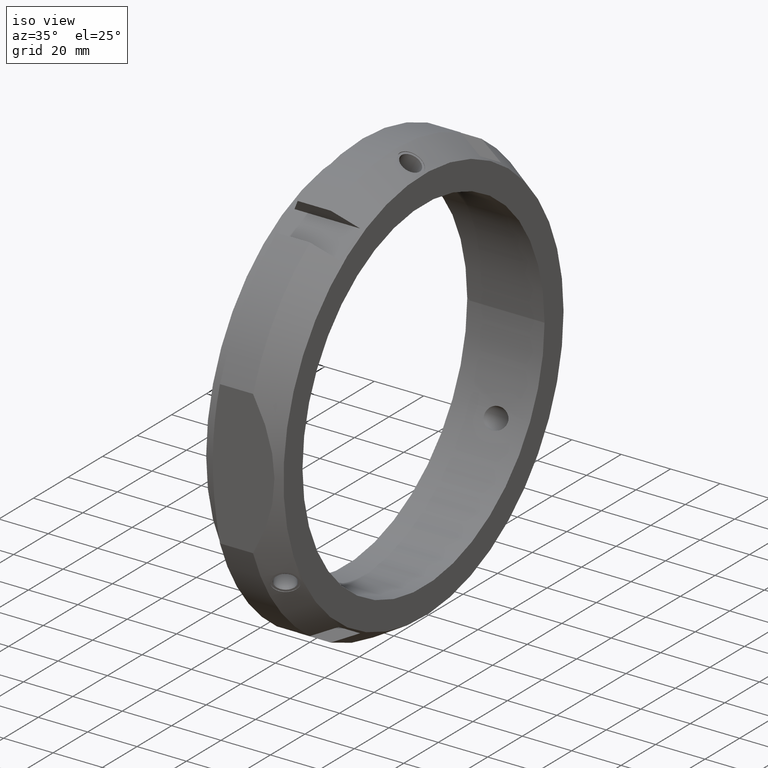
[diagram: clean part render]
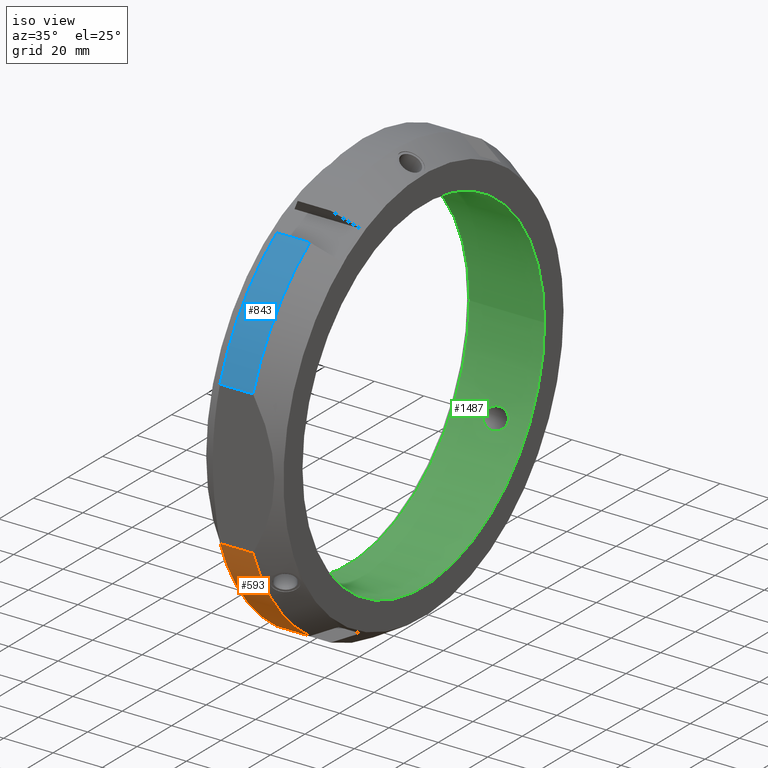
[diagram: same view with three faces highlighted in distinct colors, each labeled with its STEP entity id]
A machine part, iso view with three faces highlighted in distinct colors.
Their STEP definitions:

[orange] entity #593 — the highlighted cylindrical surface (partial cylindrical patch) has radius 87.5 mm, axis along (1, 0, 0).
#219=CARTESIAN_POINT('',(7.33012701892217,-49.671953106810982,-72.034346492175331));
#220=VERTEX_POINT('',#219);
#242=CARTESIAN_POINT('',(20.741669750802249,-49.671953106810989,-72.034346492175331));
#243=VERTEX_POINT('',#242);
#257=CARTESIAN_POINT('',(7.33012701892217,-49.671953106810989,-72.034346492175331));
#258=DIRECTION('',(1.0,0.0,0.0));
#259=VECTOR('',#258,13.411542731880079);
#260=LINE('',#257,#259);
#261=EDGE_CURVE('',#220,#243,#260,.T.);
#385=CARTESIAN_POINT('',(7.330127018922164,-82.500000000000014,-29.154759474226442));
#386=VERTEX_POINT('',#385);
#387=CARTESIAN_POINT('',(7.330127018922164,0.0,0.0));
#388=DIRECTION('',(1.0,0.0,0.0));
#389=DIRECTION('',(0.0,1.0,0.0));
#390=AXIS2_PLACEMENT_3D('',#387,#388,#389);
#391=CIRCLE('',#390,87.5);
#392=EDGE_CURVE('',#386,#220,#391,.T.);
#569=CARTESIAN_POINT('',(14.035898384862215,0.0,0.0));
#570=DIRECTION('',(1.0,0.0,0.0));
#571=DIRECTION('',(0.0,1.0,0.0));
#572=AXIS2_PLACEMENT_3D('',#569,#570,#571);
#573=CYLINDRICAL_SURFACE('',#572,87.5);
#574=ORIENTED_EDGE('',*,*,#261,.T.);
#575=CARTESIAN_POINT('',(20.741669750802263,-82.500000000000014,-29.154759474226442));
#576=VERTEX_POINT('',#575);
#577=CARTESIAN_POINT('',(20.741669750802263,0.0,0.0));
#578=DIRECTION('',(1.0,0.0,0.0));
#579=DIRECTION('',(0.0,1.0,0.0));
#580=AXIS2_PLACEMENT_3D('',#577,#578,#579);
#581=CIRCLE('',#580,87.5);
#582=EDGE_CURVE('',#576,#243,#581,.T.);
#583=ORIENTED_EDGE('',*,*,#582,.F.);
#584=CARTESIAN_POINT('',(20.741669750802263,-82.500000000000014,-29.154759474226442));
#585=DIRECTION('',(-1.0,0.0,0.0));
#586=VECTOR('',#585,13.4115427318801);
#587=LINE('',#584,#586);
#588=EDGE_CURVE('',#576,#386,#587,.T.);
#589=ORIENTED_EDGE('',*,*,#588,.T.);
#590=ORIENTED_EDGE('',*,*,#392,.T.);
#591=EDGE_LOOP('',(#574,#583,#589,#590));
#592=FACE_OUTER_BOUND('',#591,.T.);
#593=ADVANCED_FACE('',(#592),#573,.T.);

[blue] entity #843 — the highlighted cylindrical surface (partial cylindrical patch) has radius 87.5 mm, axis along (1, 0, 0).
#394=CARTESIAN_POINT('',(7.330127018922164,-82.500000000000057,29.15475947422637));
#395=VERTEX_POINT('',#394);
#409=CARTESIAN_POINT('',(7.330127018922164,-49.671953106810989,72.034346492175331));
#410=VERTEX_POINT('',#409);
#411=CARTESIAN_POINT('',(7.330127018922164,0.0,0.0));
#412=DIRECTION('',(1.0,0.0,0.0));
#413=DIRECTION('',(0.0,1.0,0.0));
#414=AXIS2_PLACEMENT_3D('',#411,#412,#413);
#415=CIRCLE('',#414,87.5);
#416=EDGE_CURVE('',#410,#395,#415,.T.);
#769=CARTESIAN_POINT('',(20.741669750802249,-49.671953106810989,72.034346492175331));
#770=VERTEX_POINT('',#769);
#771=CARTESIAN_POINT('',(20.741669750802249,-49.671953106810989,72.034346492175331));
#772=DIRECTION('',(-1.0,0.0,0.0));
#773=VECTOR('',#772,13.411542731880086);
#774=LINE('',#771,#773);
#775=EDGE_CURVE('',#770,#410,#774,.T.);
#819=CARTESIAN_POINT('',(14.035898384862215,0.0,0.0));
#820=DIRECTION('',(1.0,0.0,0.0));
#821=DIRECTION('',(0.0,1.0,0.0));
#822=AXIS2_PLACEMENT_3D('',#819,#820,#821);
#823=CYLINDRICAL_SURFACE('',#822,87.5);
#824=ORIENTED_EDGE('',*,*,#775,.T.);
#825=ORIENTED_EDGE('',*,*,#416,.T.);
#826=CARTESIAN_POINT('',(20.741669750802263,-82.500000000000057,29.15475947422637));
#827=VERTEX_POINT('',#826);
#828=CARTESIAN_POINT('',(7.330127018922163,-82.500000000000057,29.15475947422637));
#829=DIRECTION('',(1.0,0.0,0.0));
#830=VECTOR('',#829,13.4115427318801);
#831=LINE('',#828,#830);
#832=EDGE_CURVE('',#395,#827,#831,.T.);
#833=ORIENTED_EDGE('',*,*,#832,.T.);
#834=CARTESIAN_POINT('',(20.741669750802263,0.0,0.0));
#835=DIRECTION('',(1.0,0.0,0.0));
#836=DIRECTION('',(0.0,1.0,0.0));
#837=AXIS2_PLACEMENT_3D('',#834,#835,#836);
#838=CIRCLE('',#837,87.5);
#839=EDGE_CURVE('',#770,#827,#838,.T.);
#840=ORIENTED_EDGE('',*,*,#839,.F.);
#841=EDGE_LOOP('',(#824,#825,#833,#840));
#842=FACE_OUTER_BOUND('',#841,.T.);
#843=ADVANCED_FACE('',(#842),#823,.T.);

[green] entity #1487 — the highlighted cylindrical surface (bore or boss wall) has radius 70 mm, axis along (1, 0, 0).
#1090=CARTESIAN_POINT('',(18.842122965125871,62.607184447688731,-31.31038893934538));
#1091=VERTEX_POINT('',#1090);
#1092=CARTESIAN_POINT('',(18.842122965125871,62.607184447688731,-31.31038893934538));
#1093=CARTESIAN_POINT('',(19.438045013084068,62.607184447688731,-31.31038893934538));
#1094=CARTESIAN_POINT('',(20.079539088363614,62.56233161044036,-31.400621553500404));
#1095=CARTESIAN_POINT('',(21.282278242864031,62.372219472251828,-31.776573269997279));
#1096=CARTESIAN_POINT('',(21.843506254204598,62.226705550470228,-32.062218171422721));
#1097=CARTESIAN_POINT('',(22.715130318294186,61.884212807769082,-32.718032919110769));
#1098=CARTESIAN_POINT('',(23.096501805668076,61.669809080134364,-33.122498426174808));
#1099=CARTESIAN_POINT('',(23.614659410985958,61.175757998254447,-34.026341096106421));
#1100=CARTESIAN_POINT('',(23.750404698006157,60.895464590962206,-34.525961377941933));
#1101=CARTESIAN_POINT('',(23.750404698006157,60.360036710100715,-35.453349671382981));
#1102=CARTESIAN_POINT('',(23.626074252593657,60.079292688718297,-35.926690296889348));
#1103=CARTESIAN_POINT('',(23.147017135323619,59.56154433444236,-36.778674817368312));
#1104=CARTESIAN_POINT('',(22.793294915087507,59.324623745302461,-37.157933980873786));
#1105=CARTESIAN_POINT('',(21.944777735307845,58.914790452861574,-37.80502406696165));
#1106=CARTESIAN_POINT('',(21.369057483909891,58.727319597269521,-38.094006239889147));
#1107=CARTESIAN_POINT('',(20.127542333995038,58.479385192615666,-38.473534874454501));
#1108=CARTESIAN_POINT('',(19.461736663080593,58.419184447688735,-38.564217721443839));
#1109=CARTESIAN_POINT('',(18.237001643713789,58.419184447688735,-38.564217721443839));
#1110=CARTESIAN_POINT('',(17.58595390022958,58.476825430809363,-38.477402627494314));
#1111=CARTESIAN_POINT('',(16.376458536481387,58.720539172627035,-38.104434187831508));
#1112=CARTESIAN_POINT('',(15.81815860506631,58.906582673526259,-37.817782966564579));
#1113=CARTESIAN_POINT('',(14.993879520315311,59.317744722758889,-37.168960230555037));
#1114=CARTESIAN_POINT('',(14.652500490359621,59.557830664443031,-36.784740072922439));
#1115=CARTESIAN_POINT('',(14.194715104705189,60.07957421575567,-35.926272528549489));
#1116=CARTESIAN_POINT('',(14.078632988541532,60.360987085500341,-35.451703572904542));
#1117=CARTESIAN_POINT('',(14.078632988541532,60.882569444321021,-34.548296427095522));
#1118=CARTESIAN_POINT('',(14.194715104705185,61.152851780884639,-34.067301255122267));
#1119=CARTESIAN_POINT('',(14.652500490359618,61.635434706979744,-33.186224313238348));
#1120=CARTESIAN_POINT('',(14.993879520315296,61.848136153293567,-32.786193709832069));
#1121=CARTESIAN_POINT('',(15.818158605066301,62.204452100614432,-32.105705562119759));
#1122=CARTESIAN_POINT('',(16.376458536481383,62.359677589807831,-31.801261553498588));
#1123=CARTESIAN_POINT('',(17.585953900229573,62.560820862456822,-31.403715042001721));
#1124=CARTESIAN_POINT('',(18.237001643713779,62.607184447688731,-31.31038893934538));
#1125=CARTESIAN_POINT('',(18.842122965125871,62.607184447688731,-31.31038893934538));
#1126=B_SPLINE_CURVE_WITH_KNOTS('',3,(#1092,#1093,#1094,#1095,#1096,#1097,#1098,#1099,#1100,#1101,#1102,#1103,#1104,#1105,#1106,#1107,#1108,#1109,#1110,#1111,#1112,#1113,#1114,#1115,#1116,#1117,#1118,#1119,#1120,#1121,#1122,#1123,#1124,#1125),.UNSPECIFIED.,.T.,.U.,(4,2,2,2,2,2,2,2,2,2,2,2,2,2,2,2,4),(0.0,0.178776614387459,0.357553228774918,0.521765024405833,0.685976820036749,0.843021752922731,1.000066685808712,1.185950795195125,1.371834904581539,1.553371301005167,1.734907697428796,1.891382405074995,2.047857112721196,2.204331820367396,2.360806528013597,2.542342924437225,2.723879320860853),.UNSPECIFIED.);
#1127=EDGE_CURVE('',#1091,#1091,#1126,.T.);
#1180=CARTESIAN_POINT('',(18.842122965125874,-58.419184447688757,-38.564217721443789));
#1181=VERTEX_POINT('',#1180);
#1182=CARTESIAN_POINT('',(18.842122965125874,-58.419184447688757,-38.564217721443789));
#1183=CARTESIAN_POINT('',(19.46173666308059,-58.419184447688757,-38.564217721443789));
#1184=CARTESIAN_POINT('',(20.127542333995038,-58.479385192615695,-38.473534874454458));
#1185=CARTESIAN_POINT('',(21.369057483909906,-58.727319597269556,-38.094006239889097));
#1186=CARTESIAN_POINT('',(21.944777735307856,-58.914790452861624,-37.805024066961607));
#1187=CARTESIAN_POINT('',(22.793294915087515,-59.324623745302503,-37.157933980873736));
#1188=CARTESIAN_POINT('',(23.147017135323633,-59.561544334442402,-36.778674817368248));
#1189=CARTESIAN_POINT('',(23.626074252593661,-60.07929268871834,-35.926690296889284));
#1190=CARTESIAN_POINT('',(23.75040469800615,-60.360036710100751,-35.453349671382917));
#1191=CARTESIAN_POINT('',(23.75040469800615,-60.883519819720675,-34.546650328617041));
#1192=CARTESIAN_POINT('',(23.626074252593661,-61.153072815361213,-34.066848561386081));
#1193=CARTESIAN_POINT('',(23.147017135323633,-61.632038876589121,-33.192473073576053));
#1194=CARTESIAN_POINT('',(22.793294915087522,-61.84202665223296,-32.797664242948592));
#1195=CARTESIAN_POINT('',(21.944777735307859,-62.197506459101675,-32.119193157334244));
#1196=CARTESIAN_POINT('',(21.369057483909909,-62.354036934301675,-31.812347547458565));
#1197=CARTESIAN_POINT('',(20.127542333995045,-62.558751170971966,-31.407865737273472));
#1198=CARTESIAN_POINT('',(19.461736663080593,-62.607184447688759,-31.31038893934533));
#1199=CARTESIAN_POINT('',(18.255838958610187,-62.607184447688759,-31.31038893934533));
#1200=CARTESIAN_POINT('',(17.624178269343712,-62.563637372640002,-31.398014084361641));
#1201=CARTESIAN_POINT('',(16.445066699109027,-62.374319984438664,-31.772444291692501));
#1202=CARTESIAN_POINT('',(15.897770539871324,-62.228116114603509,-32.059517183501441));
#1203=CARTESIAN_POINT('',(15.054206455213762,-61.882310242122252,-32.721676005384083));
#1204=CARTESIAN_POINT('',(14.691119977359467,-61.665944343243602,-33.129705290141338));
#1205=CARTESIAN_POINT('',(14.203180080978486,-61.171023703910336,-34.034863352726312));
#1206=CARTESIAN_POINT('',(14.078632988541539,-60.892026972386475,-34.531915507972144));
#1207=CARTESIAN_POINT('',(14.078632988541539,-60.360987085500369,-35.451703572904492));
#1208=CARTESIAN_POINT('',(14.194715104705182,-60.079574215755699,-35.926272528549433));
#1209=CARTESIAN_POINT('',(14.652500490359612,-59.557830664443074,-36.784740072922382));
#1210=CARTESIAN_POINT('',(14.993879520315312,-59.317744722758917,-37.168960230554987));
#1211=CARTESIAN_POINT('',(15.818158605066312,-58.906582673526287,-37.817782966564536));
#1212=CARTESIAN_POINT('',(16.376458536481394,-58.720539172627056,-38.104434187831473));
#1213=CARTESIAN_POINT('',(17.585953900229583,-58.476825430809392,-38.477402627494264));
#1214=CARTESIAN_POINT('',(18.237001643713782,-58.419184447688757,-38.564217721443789));
#1215=CARTESIAN_POINT('',(18.842122965125874,-58.419184447688757,-38.564217721443789));
#1216=B_SPLINE_CURVE_WITH_KNOTS('',3,(#1182,#1183,#1184,#1185,#1186,#1187,#1188,#1189,#1190,#1191,#1192,#1193,#1194,#1195,#1196,#1197,#1198,#1199,#1200,#1201,#1202,#1203,#1204,#1205,#1206,#1207,#1208,#1209,#1210,#1211,#1212,#1213,#1214,#1215),.UNSPECIFIED.,.T.,.U.,(4,2,2,2,2,2,2,2,2,2,2,2,2,2,2,2,4),(0.0,0.185884109386414,0.371768218772829,0.52881315165881,0.685858084544791,0.842903017430772,0.999947950316752,1.185832059703167,1.371716169089581,1.547601371044288,1.723486572998995,1.885635797484453,2.047785021969911,2.204259729616111,2.360734437262311,2.542270833685939,2.723807230109567),.UNSPECIFIED.);
#1217=EDGE_CURVE('',#1181,#1181,#1216,.T.);
#1270=CARTESIAN_POINT('',(18.842122965125878,-4.188,69.874606660789155));
#1271=VERTEX_POINT('',#1270);
#1272=CARTESIAN_POINT('',(18.842122965125878,-4.188,69.874606660789155));
#1273=CARTESIAN_POINT('',(19.46173666308059,-4.188,69.874606660789155));
#1274=CARTESIAN_POINT('',(20.127542333995045,-4.079365978356268,69.881400611727955));
#1275=CARTESIAN_POINT('',(21.369057483909906,-3.626717337032122,69.906353787347683));
#1276=CARTESIAN_POINT('',(21.944777735307856,-3.282716006240054,69.924217224295887));
#1277=CARTESIAN_POINT('',(22.793294915087515,-2.517402906930462,69.955598223822363));
#1278=CARTESIAN_POINT('',(23.14701713532363,-2.070494542146731,69.971147890944337));
#1279=CARTESIAN_POINT('',(23.626074252593657,-1.073780126642876,69.9935388582754));
#1280=CARTESIAN_POINT('',(23.750404698006161,-0.523483109619937,70.0));
#1281=CARTESIAN_POINT('',(23.750404698006161,0.523483109619938,70.0));
#1282=CARTESIAN_POINT('',(23.626074252593657,1.073780126642876,69.9935388582754));
#1283=CARTESIAN_POINT('',(23.14701713532363,2.070494542146731,69.971147890944337));
#1284=CARTESIAN_POINT('',(22.793294915087515,2.517402906930462,69.955598223822363));
#1285=CARTESIAN_POINT('',(21.944777735307852,3.282716006240053,69.924217224295873));
#1286=CARTESIAN_POINT('',(21.369057483909902,3.626717337032125,69.906353787347683));
#1287=CARTESIAN_POINT('',(20.127542333995038,4.079365978356273,69.881400611727969));
#1288=CARTESIAN_POINT('',(19.461736663080593,4.188,69.874606660789155));
#1289=CARTESIAN_POINT('',(18.255838958610187,4.188,69.874606660789155));
#1290=CARTESIAN_POINT('',(17.624178269343705,4.090340860881209,69.88070636004457));
#1291=CARTESIAN_POINT('',(16.44506669910902,3.671416095287734,69.903967796149516));
#1292=CARTESIAN_POINT('',(15.897770539871319,3.349701743325748,69.920887976645162));
#1293=CARTESIAN_POINT('',(15.054206455213759,2.603352445994779,69.952490717239868));
#1294=CARTESIAN_POINT('',(14.691119977359474,2.141805770467675,69.969126994676941));
#1295=CARTESIAN_POINT('',(14.203180080978495,1.110455574162145,69.993092179449576));
#1296=CARTESIAN_POINT('',(14.078632988541543,0.540497414951525,70.0));
#1297=CARTESIAN_POINT('',(14.078632988541543,-0.521582358820668,70.0));
#1298=CARTESIAN_POINT('',(14.194715104705191,-1.073277565128986,69.993573783671692));
#1299=CARTESIAN_POINT('',(14.652500490359623,-2.07760404253672,69.970964386160716));
#1300=CARTESIAN_POINT('',(14.993879520315311,-2.530391430534686,69.955153940387035));
#1301=CARTESIAN_POINT('',(15.818158605066312,-3.2978694270882,69.923488528684288));
#1302=CARTESIAN_POINT('',(16.376458536481397,-3.639138417180799,69.905695741330035));
#1303=CARTESIAN_POINT('',(17.585953900229583,-4.083995431647461,69.881117669495978));
#1304=CARTESIAN_POINT('',(18.237001643713786,-4.188,69.874606660789155));
#1305=CARTESIAN_POINT('',(18.842122965125878,-4.188,69.874606660789155));
#1306=B_SPLINE_CURVE_WITH_KNOTS('',3,(#1272,#1273,#1274,#1275,#1276,#1277,#1278,#1279,#1280,#1281,#1282,#1283,#1284,#1285,#1286,#1287,#1288,#1289,#1290,#1291,#1292,#1293,#1294,#1295,#1296,#1297,#1298,#1299,#1300,#1301,#1302,#1303,#1304,#1305),.UNSPECIFIED.,.T.,.U.,(4,2,2,2,2,2,2,2,2,2,2,2,2,2,2,2,4),(0.0,0.185884109386414,0.371768218772828,0.528813151658809,0.685858084544791,0.842903017430772,0.999947950316753,1.185832059703167,1.371716169089581,1.547601371044289,1.723486572998996,1.885635797484453,2.047785021969911,2.204259729616111,2.360734437262312,2.54227083368594,2.723807230109568),.UNSPECIFIED.);
#1307=EDGE_CURVE('',#1271,#1271,#1306,.T.);
#1371=CARTESIAN_POINT('',(1.499999999999979,70.0,0.0));
#1372=VERTEX_POINT('',#1371);
#1373=CARTESIAN_POINT('',(1.499999999999979,0.0,0.0));
#1374=DIRECTION('',(1.0,0.0,0.0));
#1375=DIRECTION('',(0.0,1.0,0.0));
#1376=AXIS2_PLACEMENT_3D('',#1373,#1374,#1375);
#1377=CIRCLE('',#1376,70.0);
#1378=EDGE_CURVE('',#1372,#1372,#1377,.T.);
#1455=CARTESIAN_POINT('',(31.999999999999986,70.0,0.0));
#1456=VERTEX_POINT('',#1455);
#1457=CARTESIAN_POINT('',(31.999999999999986,0.0,0.0));
#1458=DIRECTION('',(1.0,0.0,0.0));
#1459=DIRECTION('',(0.0,1.0,0.0));
#1460=AXIS2_PLACEMENT_3D('',#1457,#1458,#1459);
#1461=CIRCLE('',#1460,70.0);
#1462=EDGE_CURVE('',#1456,#1456,#1461,.T.);
#1467=CARTESIAN_POINT('',(16.749999999999986,0.0,0.0));
#1468=DIRECTION('',(1.0,0.0,0.0));
#1469=DIRECTION('',(0.0,1.0,0.0));
#1470=AXIS2_PLACEMENT_3D('',#1467,#1468,#1469);
#1471=CYLINDRICAL_SURFACE('',#1470,70.0);
#1472=ORIENTED_EDGE('',*,*,#1378,.F.);
#1473=EDGE_LOOP('',(#1472));
#1474=FACE_OUTER_BOUND('',#1473,.T.);
#1475=ORIENTED_EDGE('',*,*,#1127,.T.);
#1476=EDGE_LOOP('',(#1475));
#1477=FACE_BOUND('',#1476,.T.);
#1478=ORIENTED_EDGE('',*,*,#1217,.T.);
#1479=EDGE_LOOP('',(#1478));
#1480=FACE_BOUND('',#1479,.T.);
#1481=ORIENTED_EDGE('',*,*,#1307,.T.);
#1482=EDGE_LOOP('',(#1481));
#1483=FACE_BOUND('',#1482,.T.);
#1484=ORIENTED_EDGE('',*,*,#1462,.T.);
#1485=EDGE_LOOP('',(#1484));
#1486=FACE_BOUND('',#1485,.T.);
#1487=ADVANCED_FACE('',(#1474,#1477,#1480,#1483,#1486),#1471,.F.);